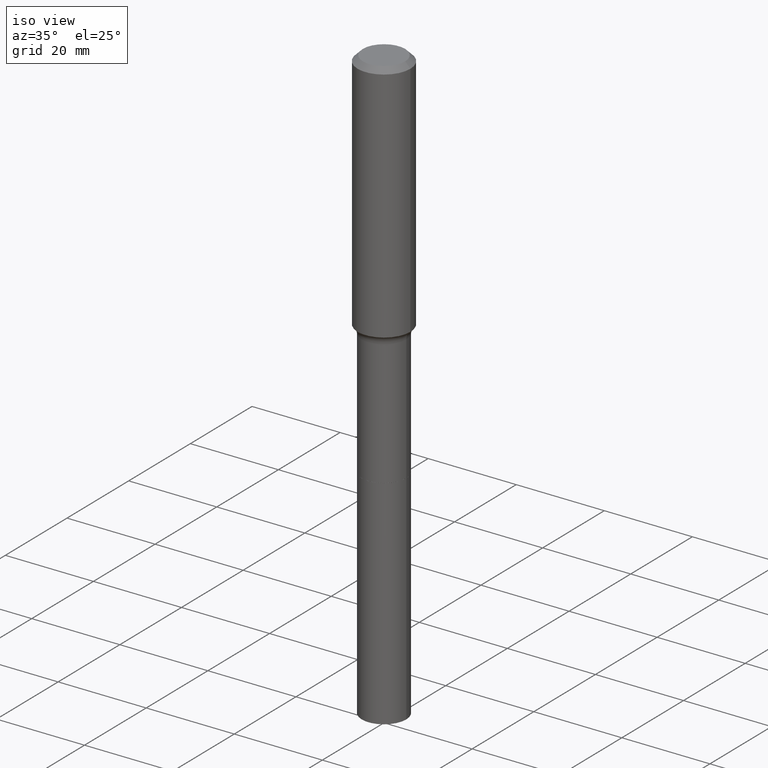
[diagram: clean part render]
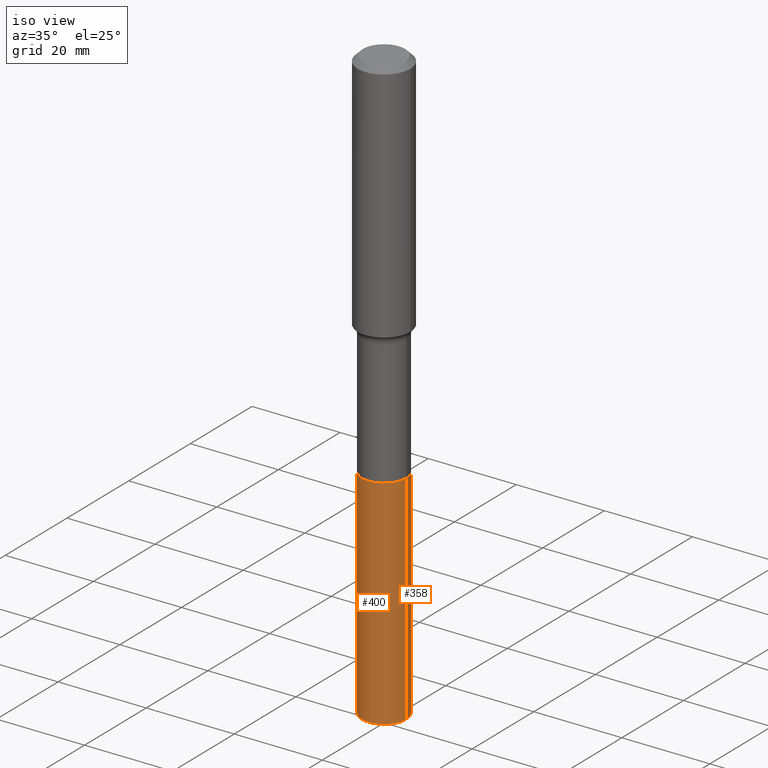
[diagram: same view with one multi-face feature highlighted, each face labeled with its STEP entity id]
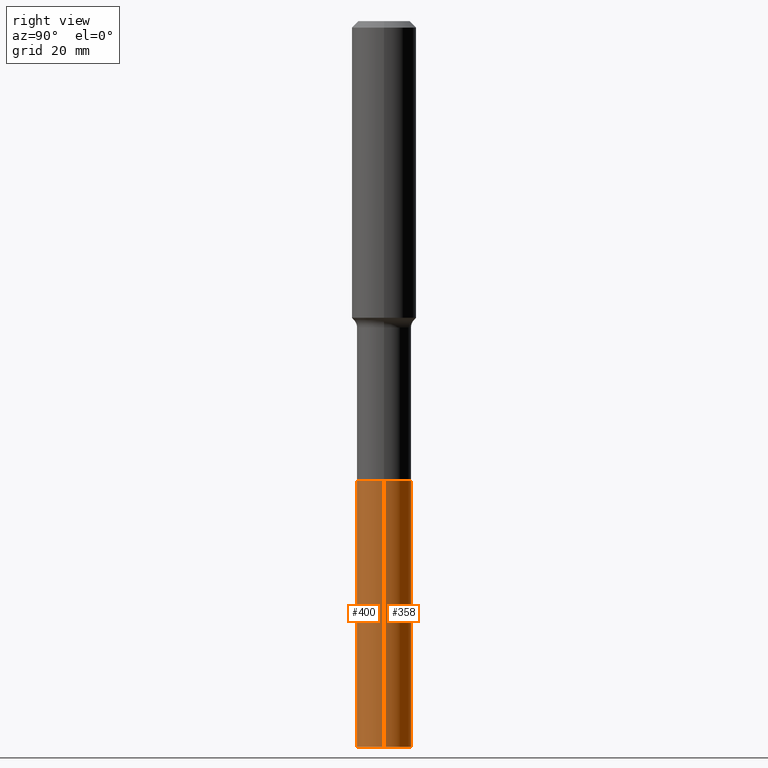
[diagram: same view with one multi-face feature highlighted, each face labeled with its STEP entity id]
A machine part, iso view. The highlighted faces form ONE feature: a constant-radius fillet chain: 2 tangent blend faces with common blend radius 5.0495 mm. The faces share edges in the B-rep.
A second angle (right view) of the same feature is appended — it is thin or edge-on in the first view.
Their STEP definitions:
[1] entity #358 (Cylinder):
#8 = DIRECTION ( 'NONE',  ( -2.445468806185136597E-29, 3.491481338843145583E-15, 1.000000000000000000 ) ) ;
#16 = DIRECTION ( 'NONE',  ( -2.445468806185136597E-29, 3.491481338843145583E-15, 1.000000000000000000 ) ) ;
#41 = VERTEX_POINT ( 'NONE', #263 ) ;
#77 = VECTOR ( 'NONE', #230, 39.37007874015748143 ) ;
#82 = CIRCLE ( 'NONE', #507, 0.1988000000000000045 ) ;
#92 = CARTESIAN_POINT ( 'NONE',  ( -0.1988000000000000045, -1.374221579255759617E-14, -5.315000000000000391 ) ) ;
#107 = AXIS2_PLACEMENT_3D ( 'NONE', #171, #451, #409 ) ;
#133 = CARTESIAN_POINT ( 'NONE',  ( 0.1988000000000000045, -1.994543629627535301E-14, -5.315000000000000391 ) ) ;
#146 = LINE ( 'NONE', #187, #438 ) ;
#169 = VERTEX_POINT ( 'NONE', #313 ) ;
#170 = DIRECTION ( 'NONE',  ( 1.000000000000000000, -6.982962677686272233E-15, 0.000000000000000000 ) ) ;
#171 = CARTESIAN_POINT ( 'NONE',  ( 8.231448001619171193E-29, -1.175232618654602903E-14, -3.366000000000000103 ) ) ;
#182 = EDGE_CURVE ( 'NONE', #330, #41, #242, .T. ) ;
#187 = CARTESIAN_POINT ( 'NONE',  ( -0.1988000000000000045, -1.033976722785494924E-14, -3.366000000000000103 ) ) ;
#209 = CYLINDRICAL_SURFACE ( 'NONE', #252, 0.1988000000000000045 ) ;
#210 = CARTESIAN_POINT ( 'NONE',  ( 1.299766670487400218E-28, -1.855722331595131973E-14, -5.315000000000000391 ) ) ;
#219 = FACE_OUTER_BOUND ( 'NONE', #328, .T. ) ;
#230 = DIRECTION ( 'NONE',  ( -2.445468806185136877E-29, 3.491481338843145188E-15, 1.000000000000000000 ) ) ;
#232 = CARTESIAN_POINT ( 'NONE',  ( 0.1988000000000000045, -1.314053916687006073E-14, -3.366000000000000103 ) ) ;
#242 = LINE ( 'NONE', #232, #77 ) ;
#252 = AXIS2_PLACEMENT_3D ( 'NONE', #372, #8, #408 ) ;
#263 = CARTESIAN_POINT ( 'NONE',  ( 0.1988000000000000045, -1.314053916687006073E-14, -3.366000000000000103 ) ) ;
#282 = EDGE_CURVE ( 'NONE', #41, #169, #440, .T. ) ;
#313 = CARTESIAN_POINT ( 'NONE',  ( -0.1988000000000000045, -1.374221579255759617E-14, -3.366000000000000103 ) ) ;
#328 = EDGE_LOOP ( 'NONE', ( #345, #476, #371, #366 ) ) ;
#330 = VERTEX_POINT ( 'NONE', #133 ) ;
#332 = EDGE_CURVE ( 'NONE', #330, #340, #82, .T. ) ;
#340 = VERTEX_POINT ( 'NONE', #92 ) ;
#345 = ORIENTED_EDGE ( 'NONE', *, *, #332, .T. ) ;
#358 = ADVANCED_FACE ( 'NONE', ( #219 ), #209, .T. ) ;
#366 = ORIENTED_EDGE ( 'NONE', *, *, #182, .F. ) ;
#371 = ORIENTED_EDGE ( 'NONE', *, *, #282, .F. ) ;
#372 = CARTESIAN_POINT ( 'NONE',  ( 8.231448001619171193E-29, -1.175232618654602903E-14, -3.366000000000000103 ) ) ;
#393 = DIRECTION ( 'NONE',  ( -2.445468806185136877E-29, 3.491481338843145188E-15, 1.000000000000000000 ) ) ;
#408 = DIRECTION ( 'NONE',  ( 1.000000000000000000, -6.982962677686272233E-15, 0.000000000000000000 ) ) ;
#409 = DIRECTION ( 'NONE',  ( 1.000000000000000000, -6.982962677686272233E-15, 0.000000000000000000 ) ) ;
#438 = VECTOR ( 'NONE', #393, 39.37007874015748143 ) ;
#440 = CIRCLE ( 'NONE', #107, 0.1988000000000000045 ) ;
#441 = EDGE_CURVE ( 'NONE', #340, #169, #146, .T. ) ;
#451 = DIRECTION ( 'NONE',  ( -2.445468806185136597E-29, 3.491481338843145583E-15, 1.000000000000000000 ) ) ;
#476 = ORIENTED_EDGE ( 'NONE', *, *, #441, .T. ) ;
#507 = AXIS2_PLACEMENT_3D ( 'NONE', #210, #16, #170 ) ;
[2] entity #400 (Cylinder):
#6 = DIRECTION ( 'NONE',  ( -2.445468806185136597E-29, 3.491481338843145583E-15, 1.000000000000000000 ) ) ;
#41 = VERTEX_POINT ( 'NONE', #263 ) ;
#63 = DIRECTION ( 'NONE',  ( 1.000000000000000000, -6.982962677686272233E-15, 0.000000000000000000 ) ) ;
#77 = VECTOR ( 'NONE', #230, 39.37007874015748143 ) ;
#92 = CARTESIAN_POINT ( 'NONE',  ( -0.1988000000000000045, -1.374221579255759617E-14, -5.315000000000000391 ) ) ;
#102 = DIRECTION ( 'NONE',  ( 1.000000000000000000, -6.982962677686272233E-15, 0.000000000000000000 ) ) ;
#133 = CARTESIAN_POINT ( 'NONE',  ( 0.1988000000000000045, -1.994543629627535301E-14, -5.315000000000000391 ) ) ;
#137 = CYLINDRICAL_SURFACE ( 'NONE', #405, 0.1988000000000000045 ) ;
#146 = LINE ( 'NONE', #187, #438 ) ;
#168 = DIRECTION ( 'NONE',  ( 1.000000000000000000, -6.982962677686272233E-15, 0.000000000000000000 ) ) ;
#169 = VERTEX_POINT ( 'NONE', #313 ) ;
#176 = ORIENTED_EDGE ( 'NONE', *, *, #488, .F. ) ;
#180 = CIRCLE ( 'NONE', #473, 0.1988000000000000045 ) ;
#182 = EDGE_CURVE ( 'NONE', #330, #41, #242, .T. ) ;
#187 = CARTESIAN_POINT ( 'NONE',  ( -0.1988000000000000045, -1.033976722785494924E-14, -3.366000000000000103 ) ) ;
#214 = AXIS2_PLACEMENT_3D ( 'NONE', #390, #422, #63 ) ;
#230 = DIRECTION ( 'NONE',  ( -2.445468806185136877E-29, 3.491481338843145188E-15, 1.000000000000000000 ) ) ;
#232 = CARTESIAN_POINT ( 'NONE',  ( 0.1988000000000000045, -1.314053916687006073E-14, -3.366000000000000103 ) ) ;
#242 = LINE ( 'NONE', #232, #77 ) ;
#263 = CARTESIAN_POINT ( 'NONE',  ( 0.1988000000000000045, -1.314053916687006073E-14, -3.366000000000000103 ) ) ;
#278 = DIRECTION ( 'NONE',  ( -2.445468806185136597E-29, 3.491481338843145583E-15, 1.000000000000000000 ) ) ;
#302 = CARTESIAN_POINT ( 'NONE',  ( 8.231448001619171193E-29, -1.175232618654602903E-14, -3.366000000000000103 ) ) ;
#313 = CARTESIAN_POINT ( 'NONE',  ( -0.1988000000000000045, -1.374221579255759617E-14, -3.366000000000000103 ) ) ;
#330 = VERTEX_POINT ( 'NONE', #133 ) ;
#339 = FACE_OUTER_BOUND ( 'NONE', #399, .T. ) ;
#340 = VERTEX_POINT ( 'NONE', #92 ) ;
#370 = ORIENTED_EDGE ( 'NONE', *, *, #182, .T. ) ;
#383 = CIRCLE ( 'NONE', #214, 0.1988000000000000045 ) ;
#384 = CARTESIAN_POINT ( 'NONE',  ( 8.231448001619171193E-29, -1.175232618654602903E-14, -3.366000000000000103 ) ) ;
#390 = CARTESIAN_POINT ( 'NONE',  ( 1.299766670487400218E-28, -1.855722331595131973E-14, -5.315000000000000391 ) ) ;
#393 = DIRECTION ( 'NONE',  ( -2.445468806185136877E-29, 3.491481338843145188E-15, 1.000000000000000000 ) ) ;
#399 = EDGE_LOOP ( 'NONE', ( #478, #417, #370, #176 ) ) ;
#400 = ADVANCED_FACE ( 'NONE', ( #339 ), #137, .T. ) ;
#405 = AXIS2_PLACEMENT_3D ( 'NONE', #302, #6, #168 ) ;
#417 = ORIENTED_EDGE ( 'NONE', *, *, #490, .T. ) ;
#422 = DIRECTION ( 'NONE',  ( -2.445468806185136597E-29, 3.491481338843145583E-15, 1.000000000000000000 ) ) ;
#438 = VECTOR ( 'NONE', #393, 39.37007874015748143 ) ;
#441 = EDGE_CURVE ( 'NONE', #340, #169, #146, .T. ) ;
#473 = AXIS2_PLACEMENT_3D ( 'NONE', #384, #278, #102 ) ;
#478 = ORIENTED_EDGE ( 'NONE', *, *, #441, .F. ) ;
#488 = EDGE_CURVE ( 'NONE', #169, #41, #180, .T. ) ;
#490 = EDGE_CURVE ( 'NONE', #340, #330, #383, .T. ) ;